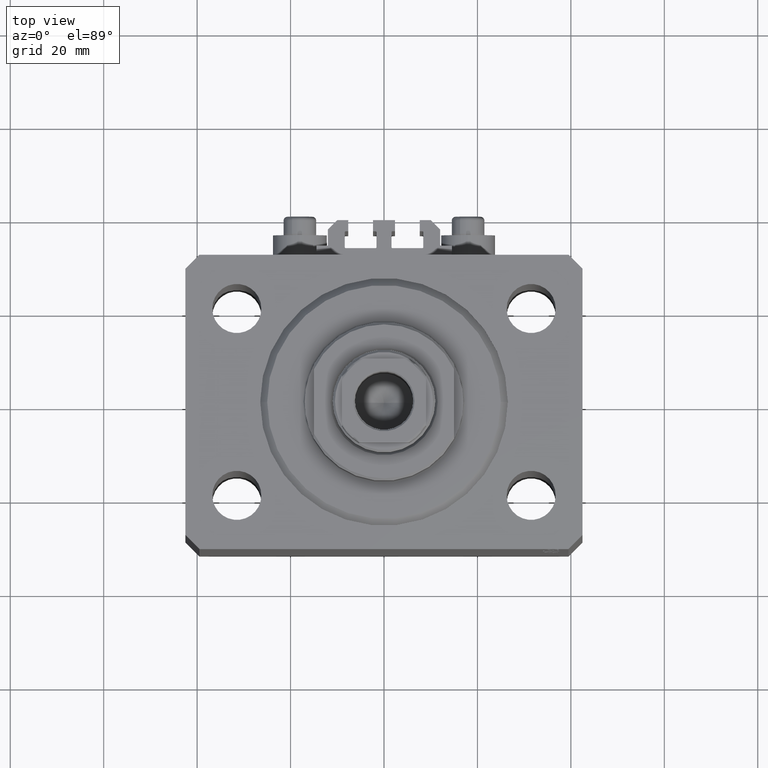
[diagram: clean part render]
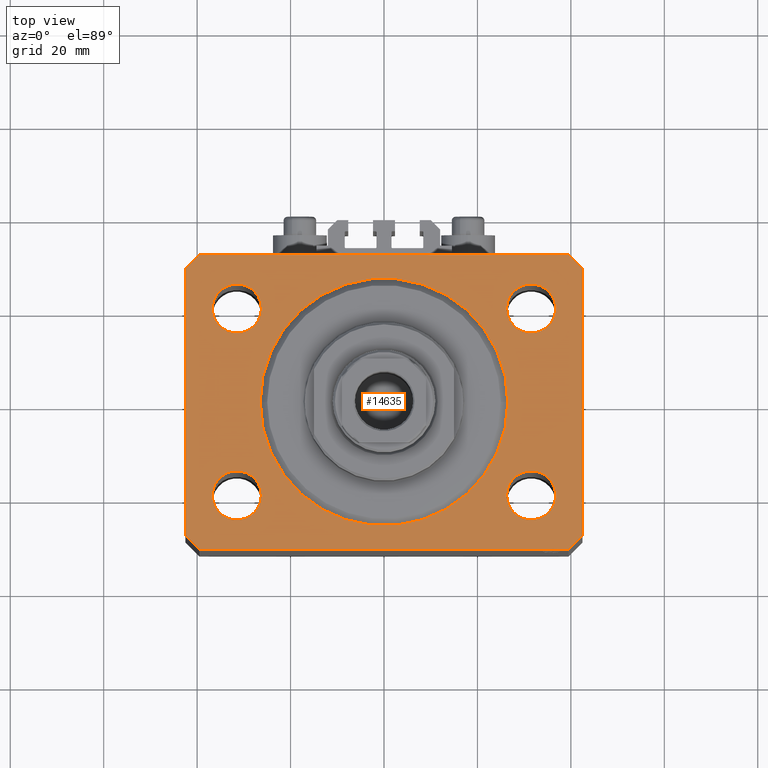
[diagram: same view with one face highlighted and labeled with its STEP entity id]
A machine part, top view. The second image highlights one B-rep face of the part: STEP entity #14635.
In plain terms, the highlighted planar face has unit normal (0, 0, 1).
Its self-contained STEP definition (entity closure, byte-faithful):
#344 = VECTOR ( 'NONE', #44237, 1000.000000000000000 ) ;
#622 = EDGE_CURVE ( 'NONE', #8110, #9015, #30057, .T. ) ;
#769 = CARTESIAN_POINT ( 'NONE',  ( -26.50000000000000355, 3.245314017740486554E-15, 0.000000000000000000 ) ) ;
#1132 = DIRECTION ( 'NONE',  ( 0.000000000000000000, 0.000000000000000000, 1.000000000000000000 ) ) ;
#1257 = ORIENTED_EDGE ( 'NONE', *, *, #43213, .T. ) ;
#2070 = CARTESIAN_POINT ( 'NONE',  ( 42.50000000000000711, -28.50000000000000355, 0.000000000000000000 ) ) ;
#2091 = EDGE_CURVE ( 'NONE', #41930, #31565, #18699, .T. ) ;
#2439 = CARTESIAN_POINT ( 'NONE',  ( 39.50000000000056843, 31.49999999999999289, 0.000000000000000000 ) ) ;
#2660 = AXIS2_PLACEMENT_3D ( 'NONE', #18440, #14387, #14150 ) ;
#2742 = CARTESIAN_POINT ( 'NONE',  ( -31.50000000000000000, 19.99999999999999645, 0.000000000000000000 ) ) ;
#2995 = VECTOR ( 'NONE', #33620, 1000.000000000000000 ) ;
#3469 = VERTEX_POINT ( 'NONE', #28479 ) ;
#3993 = DIRECTION ( 'NONE',  ( 1.000000000000000000, 0.000000000000000000, 0.000000000000000000 ) ) ;
#4163 = ORIENTED_EDGE ( 'NONE', *, *, #39093, .F. ) ;
#4443 = AXIS2_PLACEMENT_3D ( 'NONE', #40286, #1132, #3993 ) ;
#4512 = CARTESIAN_POINT ( 'NONE',  ( 42.50000000000000711, -28.50000000000000355, 0.000000000000000000 ) ) ;
#5006 = DIRECTION ( 'NONE',  ( 0.000000000000000000, 0.000000000000000000, 1.000000000000000000 ) ) ;
#5309 = VERTEX_POINT ( 'NONE', #29443 ) ;
#5346 = EDGE_CURVE ( 'NONE', #5309, #28313, #29208, .T. ) ;
#5502 = EDGE_CURVE ( 'NONE', #34681, #30873, #17247, .T. ) ;
#5601 = DIRECTION ( 'NONE',  ( 1.000000000000000000, 0.000000000000000000, 0.000000000000000000 ) ) ;
#6185 = EDGE_LOOP ( 'NONE', ( #7897, #36753 ) ) ;
#6354 = FACE_BOUND ( 'NONE', #38965, .T. ) ;
#6732 = AXIS2_PLACEMENT_3D ( 'NONE', #18946, #41383, #15591 ) ;
#6867 = CARTESIAN_POINT ( 'NONE',  ( 31.49999999999999289, -20.00000000000000355, 0.000000000000000000 ) ) ;
#7244 = DIRECTION ( 'NONE',  ( 1.000000000000000000, 0.000000000000000000, 0.000000000000000000 ) ) ;
#7435 = DIRECTION ( 'NONE',  ( 0.000000000000000000, 0.000000000000000000, 1.000000000000000000 ) ) ;
#7897 = ORIENTED_EDGE ( 'NONE', *, *, #622, .F. ) ;
#7942 = EDGE_CURVE ( 'NONE', #27295, #5309, #21520, .T. ) ;
#8097 = CARTESIAN_POINT ( 'NONE',  ( 26.50000000000000355, 0.000000000000000000, 0.000000000000000000 ) ) ;
#8110 = VERTEX_POINT ( 'NONE', #15509 ) ;
#8212 = CARTESIAN_POINT ( 'NONE',  ( -36.74999999999999289, -20.00000000000000355, 0.000000000000000000 ) ) ;
#8842 = VECTOR ( 'NONE', #34599, 1000.000000000000000 ) ;
#9004 = CIRCLE ( 'NONE', #10517, 5.249999999999997335 ) ;
#9015 = VERTEX_POINT ( 'NONE', #30706 ) ;
#9770 = CIRCLE ( 'NONE', #31901, 5.250000000000000888 ) ;
#9894 = DIRECTION ( 'NONE',  ( 0.000000000000000000, 0.000000000000000000, 1.000000000000000000 ) ) ;
#10297 = CARTESIAN_POINT ( 'NONE',  ( -39.50000000000000711, -31.50000000000000000, 0.000000000000000000 ) ) ;
#10456 = DIRECTION ( 'NONE',  ( 1.000000000000000000, 0.000000000000000000, 0.000000000000000000 ) ) ;
#10517 = AXIS2_PLACEMENT_3D ( 'NONE', #22464, #7435, #29176 ) ;
#11005 = EDGE_CURVE ( 'NONE', #9015, #8110, #15105, .T. ) ;
#11285 = VERTEX_POINT ( 'NONE', #11984 ) ;
#11492 = DIRECTION ( 'NONE',  ( 0.7071067811865483499, 0.7071067811865466846, 0.000000000000000000 ) ) ;
#11575 = EDGE_CURVE ( 'NONE', #16026, #36177, #9770, .T. ) ;
#11676 = DIRECTION ( 'NONE',  ( 1.000000000000000000, 0.000000000000000000, 0.000000000000000000 ) ) ;
#11764 = FACE_BOUND ( 'NONE', #24518, .T. ) ;
#11984 = CARTESIAN_POINT ( 'NONE',  ( -39.50000000000000711, 31.50000000000000000, 0.000000000000000000 ) ) ;
#12281 = DIRECTION ( 'NONE',  ( 0.000000000000000000, 0.000000000000000000, 1.000000000000000000 ) ) ;
#12618 = CARTESIAN_POINT ( 'NONE',  ( -42.50000000000000000, 28.50000000000000000, 0.000000000000000000 ) ) ;
#13163 = LINE ( 'NONE', #2439, #24789 ) ;
#13588 = EDGE_CURVE ( 'NONE', #11285, #21113, #37211, .T. ) ;
#14145 = EDGE_CURVE ( 'NONE', #30873, #34681, #9004, .T. ) ;
#14150 = DIRECTION ( 'NONE',  ( 1.000000000000000000, 0.000000000000000000, 0.000000000000000000 ) ) ;
#14315 = VERTEX_POINT ( 'NONE', #21001 ) ;
#14387 = DIRECTION ( 'NONE',  ( 0.000000000000000000, 0.000000000000000000, 1.000000000000000000 ) ) ;
#14635 = ADVANCED_FACE ( 'NONE', ( #39072, #6354, #40916, #22762, #11764, #23226 ), #26824, .T. ) ;
#14707 = CARTESIAN_POINT ( 'NONE',  ( 26.24999999999999645, -20.00000000000000355, 0.000000000000000000 ) ) ;
#14831 = CIRCLE ( 'NONE', #38501, 5.250000000000000888 ) ;
#15034 = CARTESIAN_POINT ( 'NONE',  ( -31.49999999999999289, -20.00000000000000355, 0.000000000000000000 ) ) ;
#15105 = CIRCLE ( 'NONE', #4443, 5.249999999999997335 ) ;
#15451 = EDGE_LOOP ( 'NONE', ( #42762, #22962, #1257, #43456, #19843, #46425, #44997, #28490 ) ) ;
#15509 = CARTESIAN_POINT ( 'NONE',  ( 36.75000000000000000, 19.99999999999999289, 0.000000000000000000 ) ) ;
#15591 = DIRECTION ( 'NONE',  ( 1.000000000000000000, 0.000000000000000000, -0.000000000000000000 ) ) ;
#16026 = VERTEX_POINT ( 'NONE', #8212 ) ;
#16465 = DIRECTION ( 'NONE',  ( 1.000000000000000000, 0.000000000000000000, 0.000000000000000000 ) ) ;
#16557 = VECTOR ( 'NONE', #20807, 1000.000000000000000 ) ;
#16950 = CARTESIAN_POINT ( 'NONE',  ( 36.74999999999999289, -20.00000000000000355, 0.000000000000000000 ) ) ;
#17245 = CARTESIAN_POINT ( 'NONE',  ( -26.24999999999999289, -20.00000000000000355, 0.000000000000000000 ) ) ;
#17247 = CIRCLE ( 'NONE', #40857, 5.249999999999997335 ) ;
#17894 = LINE ( 'NONE', #28654, #38593 ) ;
#18440 = CARTESIAN_POINT ( 'NONE',  ( -31.49999999999999289, -20.00000000000000355, 0.000000000000000000 ) ) ;
#18699 = CIRCLE ( 'NONE', #20200, 26.50000000000000355 ) ;
#18914 = CARTESIAN_POINT ( 'NONE',  ( 39.50000000000000711, -31.50000000000000000, 0.000000000000000000 ) ) ;
#18946 = CARTESIAN_POINT ( 'NONE',  ( 0.000000000000000000, 0.000000000000000000, 0.000000000000000000 ) ) ;
#19050 = CARTESIAN_POINT ( 'NONE',  ( -39.50000000000000711, 31.50000000000000000, 0.000000000000000000 ) ) ;
#19071 = DIRECTION ( 'NONE',  ( 8.886653596232072440E-15, 1.000000000000000000, 0.000000000000000000 ) ) ;
#19843 = ORIENTED_EDGE ( 'NONE', *, *, #7942, .T. ) ;
#20200 = AXIS2_PLACEMENT_3D ( 'NONE', #41196, #12281, #5601 ) ;
#20640 = ORIENTED_EDGE ( 'NONE', *, *, #39158, .F. ) ;
#20782 = DIRECTION ( 'NONE',  ( 0.000000000000000000, 0.000000000000000000, 1.000000000000000000 ) ) ;
#20807 = DIRECTION ( 'NONE',  ( 1.000000000000000000, 0.000000000000000000, 0.000000000000000000 ) ) ;
#20912 = AXIS2_PLACEMENT_3D ( 'NONE', #27224, #5006, #16465 ) ;
#21001 = CARTESIAN_POINT ( 'NONE',  ( -36.75000000000000000, 19.99999999999999645, 0.000000000000000000 ) ) ;
#21113 = VERTEX_POINT ( 'NONE', #33877 ) ;
#21146 = EDGE_LOOP ( 'NONE', ( #20640, #34976 ) ) ;
#21158 = EDGE_CURVE ( 'NONE', #28313, #22304, #32943, .T. ) ;
#21520 = LINE ( 'NONE', #10297, #16557 ) ;
#21909 = DIRECTION ( 'NONE',  ( 0.000000000000000000, 0.000000000000000000, 1.000000000000000000 ) ) ;
#22304 = VERTEX_POINT ( 'NONE', #44331 ) ;
#22464 = CARTESIAN_POINT ( 'NONE',  ( 31.49999999999999289, -20.00000000000000355, 0.000000000000000000 ) ) ;
#22478 = CIRCLE ( 'NONE', #36966, 26.50000000000000355 ) ;
#22569 = ORIENTED_EDGE ( 'NONE', *, *, #5502, .F. ) ;
#22624 = VERTEX_POINT ( 'NONE', #27075 ) ;
#22754 = DIRECTION ( 'NONE',  ( 0.000000000000000000, 0.000000000000000000, 1.000000000000000000 ) ) ;
#22762 = FACE_BOUND ( 'NONE', #6185, .T. ) ;
#22962 = ORIENTED_EDGE ( 'NONE', *, *, #13588, .T. ) ;
#23226 = FACE_OUTER_BOUND ( 'NONE', #15451, .T. ) ;
#23456 = DIRECTION ( 'NONE',  ( -1.000000000000000000, 8.783410004945795812E-17, 0.000000000000000000 ) ) ;
#23870 = CARTESIAN_POINT ( 'NONE',  ( -39.50000000000000711, -31.50000000000000000, 0.000000000000000000 ) ) ;
#24518 = EDGE_LOOP ( 'NONE', ( #32664, #4163 ) ) ;
#24789 = VECTOR ( 'NONE', #23456, 1000.000000000000000 ) ;
#26328 = CARTESIAN_POINT ( 'NONE',  ( -42.50000000000000000, -28.50000000000000000, 0.000000000000000000 ) ) ;
#26824 = PLANE ( 'NONE',  #6732 ) ;
#27075 = CARTESIAN_POINT ( 'NONE',  ( 39.50000000000056843, 31.49999999999999289, 0.000000000000000000 ) ) ;
#27224 = CARTESIAN_POINT ( 'NONE',  ( 31.50000000000000000, 19.99999999999999289, 0.000000000000000000 ) ) ;
#27295 = VERTEX_POINT ( 'NONE', #23870 ) ;
#27799 = EDGE_CURVE ( 'NONE', #3469, #27295, #36611, .T. ) ;
#27844 = EDGE_CURVE ( 'NONE', #36177, #16026, #32419, .T. ) ;
#28313 = VERTEX_POINT ( 'NONE', #2070 ) ;
#28479 = CARTESIAN_POINT ( 'NONE',  ( -42.50000000000000000, -28.50000000000000000, 0.000000000000000000 ) ) ;
#28490 = ORIENTED_EDGE ( 'NONE', *, *, #45837, .T. ) ;
#28654 = CARTESIAN_POINT ( 'NONE',  ( 42.50000000000051870, 28.49999999999995381, 0.000000000000000000 ) ) ;
#29106 = CIRCLE ( 'NONE', #45864, 5.250000000000000888 ) ;
#29176 = DIRECTION ( 'NONE',  ( 1.000000000000000000, 0.000000000000000000, 0.000000000000000000 ) ) ;
#29208 = LINE ( 'NONE', #18914, #41652 ) ;
#29443 = CARTESIAN_POINT ( 'NONE',  ( 39.50000000000000711, -31.50000000000000000, 0.000000000000000000 ) ) ;
#29626 = DIRECTION ( 'NONE',  ( 0.000000000000000000, 0.000000000000000000, 1.000000000000000000 ) ) ;
#29897 = VECTOR ( 'NONE', #19071, 1000.000000000000000 ) ;
#30057 = CIRCLE ( 'NONE', #20912, 5.249999999999997335 ) ;
#30706 = CARTESIAN_POINT ( 'NONE',  ( 26.25000000000000355, 19.99999999999999289, 0.000000000000000000 ) ) ;
#30873 = VERTEX_POINT ( 'NONE', #14707 ) ;
#31404 = EDGE_CURVE ( 'NONE', #35498, #14315, #29106, .T. ) ;
#31565 = VERTEX_POINT ( 'NONE', #8097 ) ;
#31805 = ORIENTED_EDGE ( 'NONE', *, *, #14145, .F. ) ;
#31901 = AXIS2_PLACEMENT_3D ( 'NONE', #15034, #29626, #11676 ) ;
#32165 = EDGE_LOOP ( 'NONE', ( #22569, #31805 ) ) ;
#32246 = CARTESIAN_POINT ( 'NONE',  ( -31.50000000000000000, 19.99999999999999645, 0.000000000000000000 ) ) ;
#32419 = CIRCLE ( 'NONE', #2660, 5.250000000000000888 ) ;
#32664 = ORIENTED_EDGE ( 'NONE', *, *, #31404, .F. ) ;
#32943 = LINE ( 'NONE', #4512, #29897 ) ;
#33037 = DIRECTION ( 'NONE',  ( 1.000000000000000000, 0.000000000000000000, 0.000000000000000000 ) ) ;
#33620 = DIRECTION ( 'NONE',  ( -0.7071067811865471286, -0.7071067811865479058, 0.000000000000000000 ) ) ;
#33877 = CARTESIAN_POINT ( 'NONE',  ( -42.50000000000000000, 28.50000000000000000, 0.000000000000000000 ) ) ;
#34599 = DIRECTION ( 'NONE',  ( 0.000000000000000000, -1.000000000000000000, 0.000000000000000000 ) ) ;
#34681 = VERTEX_POINT ( 'NONE', #16950 ) ;
#34976 = ORIENTED_EDGE ( 'NONE', *, *, #2091, .F. ) ;
#35123 = DIRECTION ( 'NONE',  ( 1.000000000000000000, 0.000000000000000000, 0.000000000000000000 ) ) ;
#35498 = VERTEX_POINT ( 'NONE', #37759 ) ;
#36177 = VERTEX_POINT ( 'NONE', #17245 ) ;
#36312 = ORIENTED_EDGE ( 'NONE', *, *, #11575, .F. ) ;
#36611 = LINE ( 'NONE', #26328, #344 ) ;
#36753 = ORIENTED_EDGE ( 'NONE', *, *, #11005, .F. ) ;
#36966 = AXIS2_PLACEMENT_3D ( 'NONE', #37563, #22754, #33037 ) ;
#37211 = LINE ( 'NONE', #19050, #2995 ) ;
#37563 = CARTESIAN_POINT ( 'NONE',  ( 0.000000000000000000, 0.000000000000000000, 0.000000000000000000 ) ) ;
#37759 = CARTESIAN_POINT ( 'NONE',  ( -26.25000000000000000, 19.99999999999999645, 0.000000000000000000 ) ) ;
#38501 = AXIS2_PLACEMENT_3D ( 'NONE', #2742, #9894, #7244 ) ;
#38593 = VECTOR ( 'NONE', #39620, 1000.000000000000114 ) ;
#38965 = EDGE_LOOP ( 'NONE', ( #39504, #36312 ) ) ;
#39072 = FACE_BOUND ( 'NONE', #21146, .T. ) ;
#39093 = EDGE_CURVE ( 'NONE', #14315, #35498, #14831, .T. ) ;
#39158 = EDGE_CURVE ( 'NONE', #31565, #41930, #22478, .T. ) ;
#39504 = ORIENTED_EDGE ( 'NONE', *, *, #27844, .F. ) ;
#39620 = DIRECTION ( 'NONE',  ( -0.7071067811865364705, 0.7071067811865584529, 0.000000000000000000 ) ) ;
#40286 = CARTESIAN_POINT ( 'NONE',  ( 31.50000000000000000, 19.99999999999999289, 0.000000000000000000 ) ) ;
#40857 = AXIS2_PLACEMENT_3D ( 'NONE', #6867, #21909, #10456 ) ;
#40916 = FACE_BOUND ( 'NONE', #32165, .T. ) ;
#41196 = CARTESIAN_POINT ( 'NONE',  ( 0.000000000000000000, 0.000000000000000000, 0.000000000000000000 ) ) ;
#41383 = DIRECTION ( 'NONE',  ( 0.000000000000000000, 0.000000000000000000, 1.000000000000000000 ) ) ;
#41652 = VECTOR ( 'NONE', #11492, 1000.000000000000000 ) ;
#41930 = VERTEX_POINT ( 'NONE', #769 ) ;
#42762 = ORIENTED_EDGE ( 'NONE', *, *, #44538, .T. ) ;
#43213 = EDGE_CURVE ( 'NONE', #21113, #3469, #45337, .T. ) ;
#43456 = ORIENTED_EDGE ( 'NONE', *, *, #27799, .T. ) ;
#44237 = DIRECTION ( 'NONE',  ( 0.7071067811865471286, -0.7071067811865479058, 0.000000000000000000 ) ) ;
#44331 = CARTESIAN_POINT ( 'NONE',  ( 42.50000000000051870, 28.49999999999995381, 0.000000000000000000 ) ) ;
#44538 = EDGE_CURVE ( 'NONE', #22624, #11285, #13163, .T. ) ;
#44997 = ORIENTED_EDGE ( 'NONE', *, *, #21158, .T. ) ;
#45337 = LINE ( 'NONE', #12618, #8842 ) ;
#45837 = EDGE_CURVE ( 'NONE', #22304, #22624, #17894, .T. ) ;
#45864 = AXIS2_PLACEMENT_3D ( 'NONE', #32246, #20782, #35123 ) ;
#46425 = ORIENTED_EDGE ( 'NONE', *, *, #5346, .T. ) ;